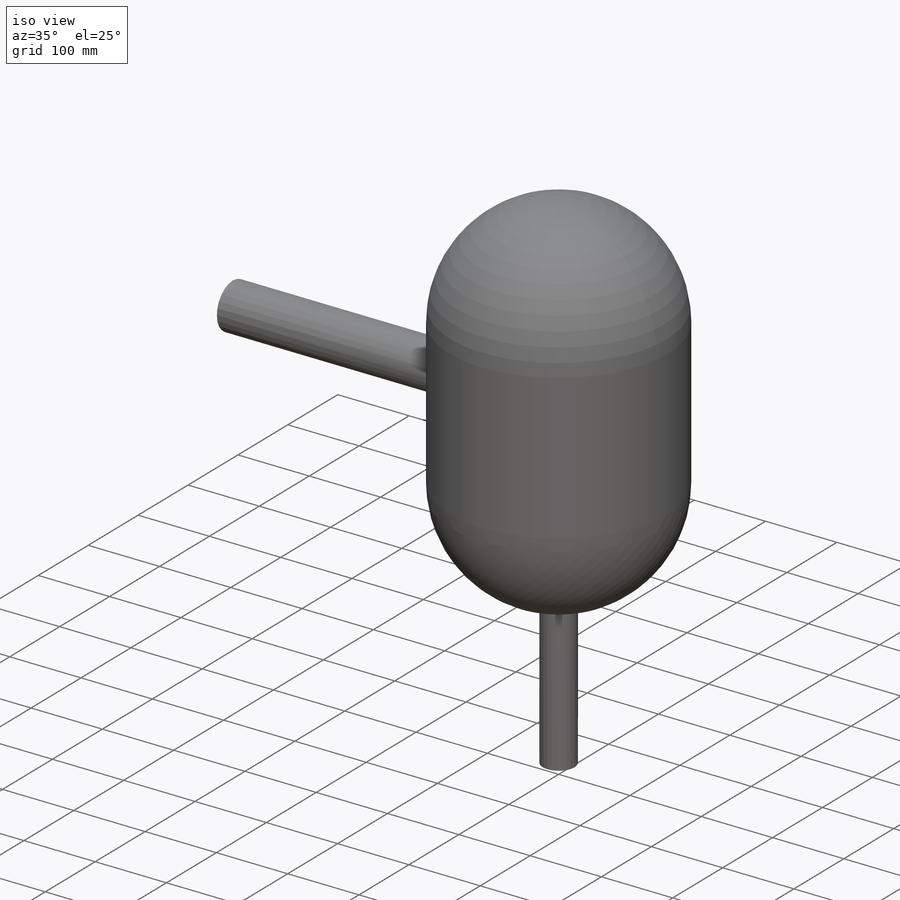
[diagram: iso view]
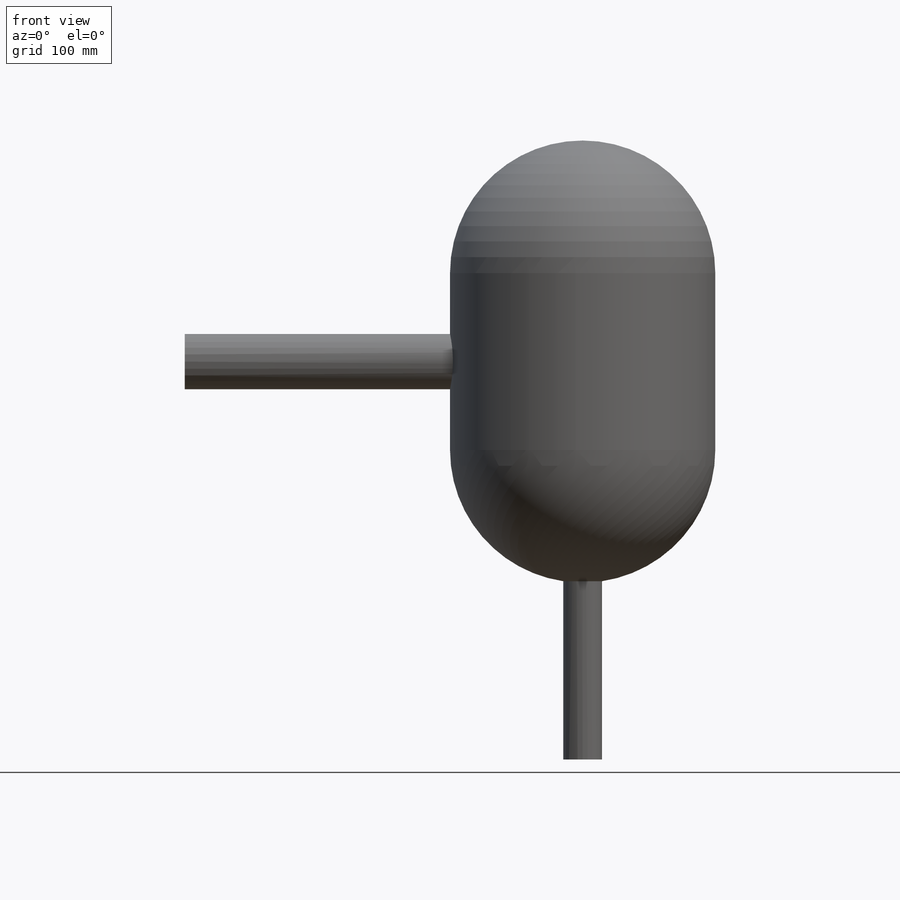
[diagram: front view]
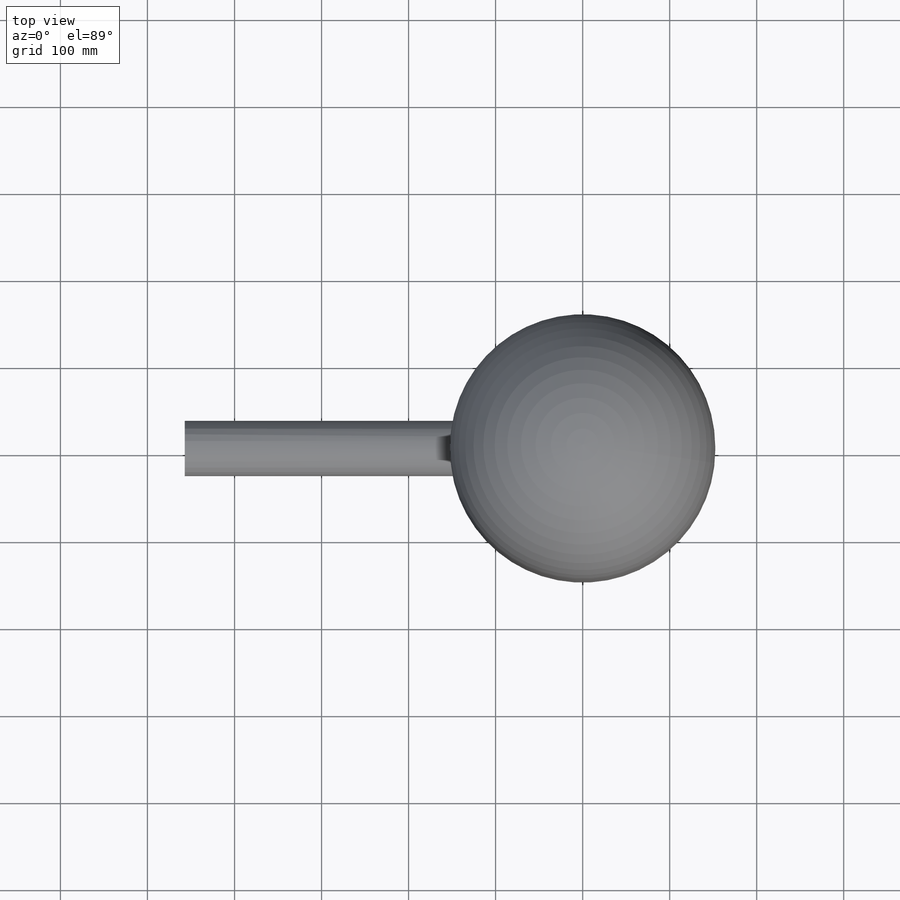
[diagram: top view]
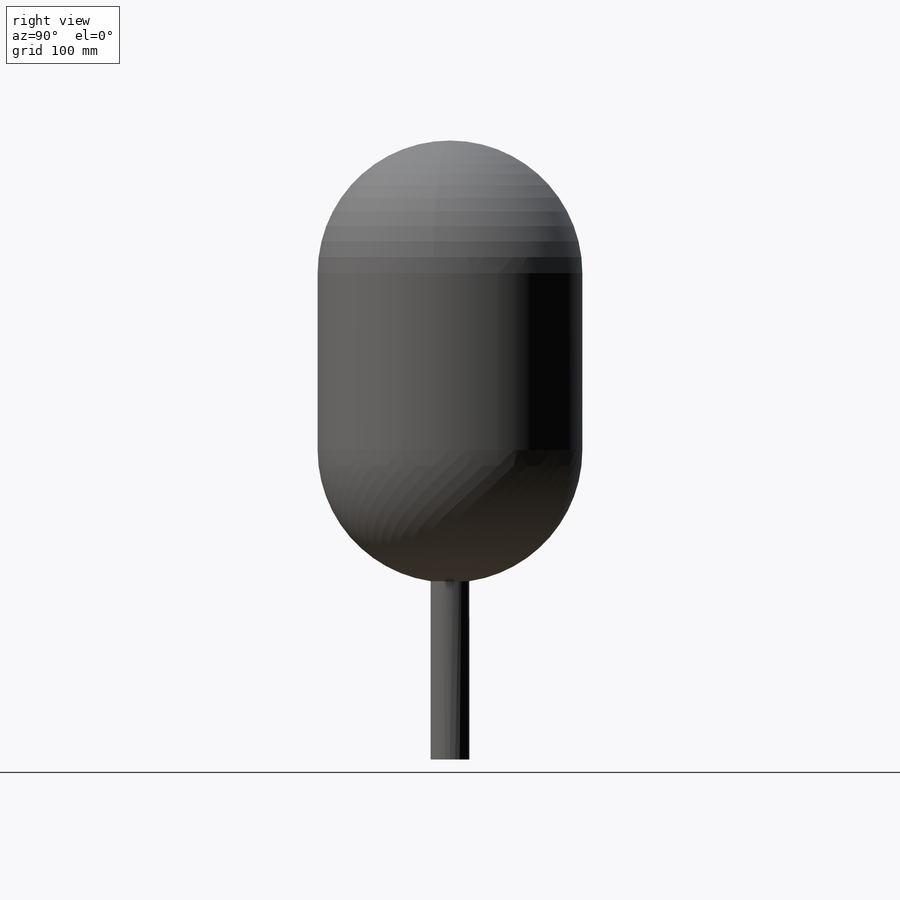
[diagram: right view]
SOLIDWORKS PART (.sldprt)
format: sldprt  version: not decoded by parser v0  size: 271,872 bytes
history: native  units: mm
features: sketch x5, cut_extrude x2, plane x2, extrude x2, material x1, revolve x1 (+12 scaffold rows collapsed)
feature tree (25):
  scaffold x12  (default folders/planes/origin — collapsed)
  material  "Plain Carbon Steel"
  sketch  "Sketch1"  dims[c1.D1=152.4mm c1.D5=146.05mm c1.D2=152.4mm c1.D3=203.2mm c1.D4=508.0mm c2.D2=6.35mm c2.D5=6.35mm c2.D6=6.35mm c2.D7=6.35mm c3.D5=101.6mm c3.D2=6.35mm]
  revolve  "Revolve1"  Angle=360deg
  sketch  "Sketch2"  dims[D1=50.8mm]
  cut_extrude  "Cut-Extrude1"  [1 undecoded]
  plane  "Plane1"  Offset=457.2mm
  sketch  "Sketch4"  dims[D1=6.35mm]
  extrude  "Boss-Extrude3"  [1 undecoded]
  plane  "Plane2"  Offset=457.2mm
  sketch  "Sketch5"  dims[D1=31.75mm]
  cut_extrude  "Cut-Extrude2"  [1 undecoded]
  sketch  "Sketch6"  dims[D1=6.35mm]
  extrude  "Boss-Extrude4"  Depth=0mm ModelUUID=0mm UUID=0mm
decode coverage: 7 of 10 modeling features carry decoded parameters
note: 3 parameter values undecoded
summary: no parameter record found for 3 features
note: suppression state not decoded; provenance and decode notes live in map.json
